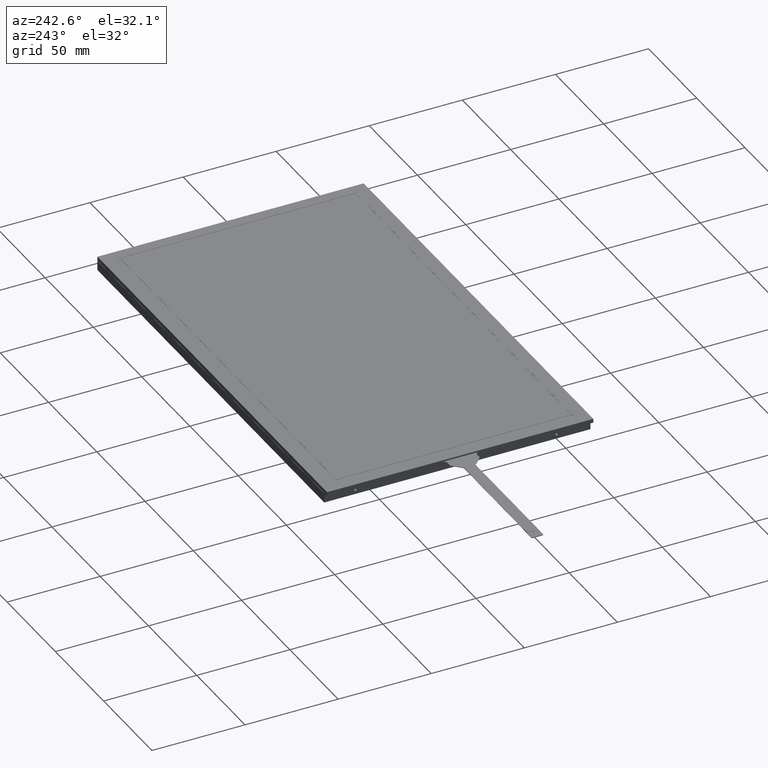
[diagram: clean part render]
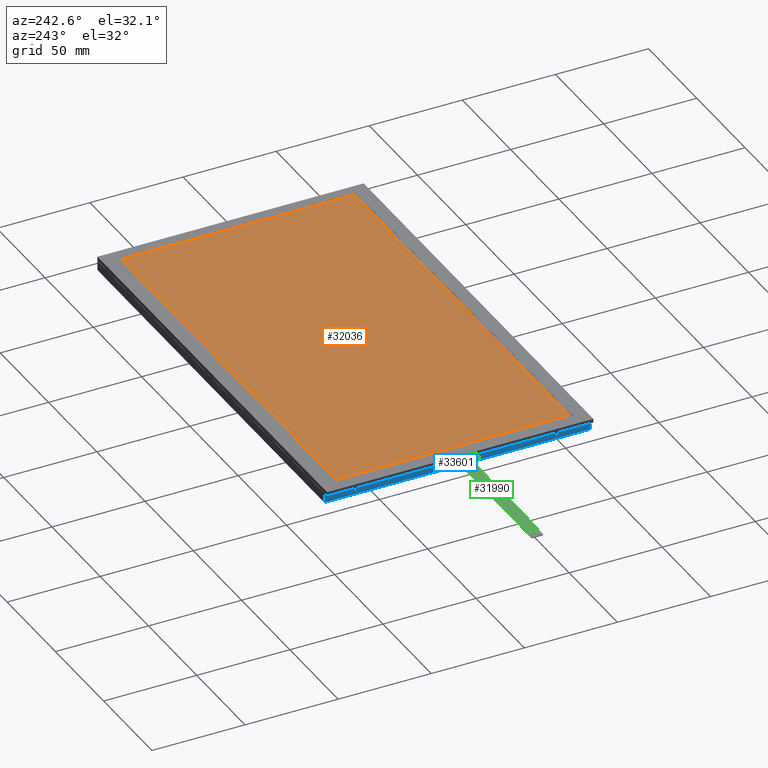
[diagram: same view with three faces highlighted in distinct colors, each labeled with its STEP entity id]
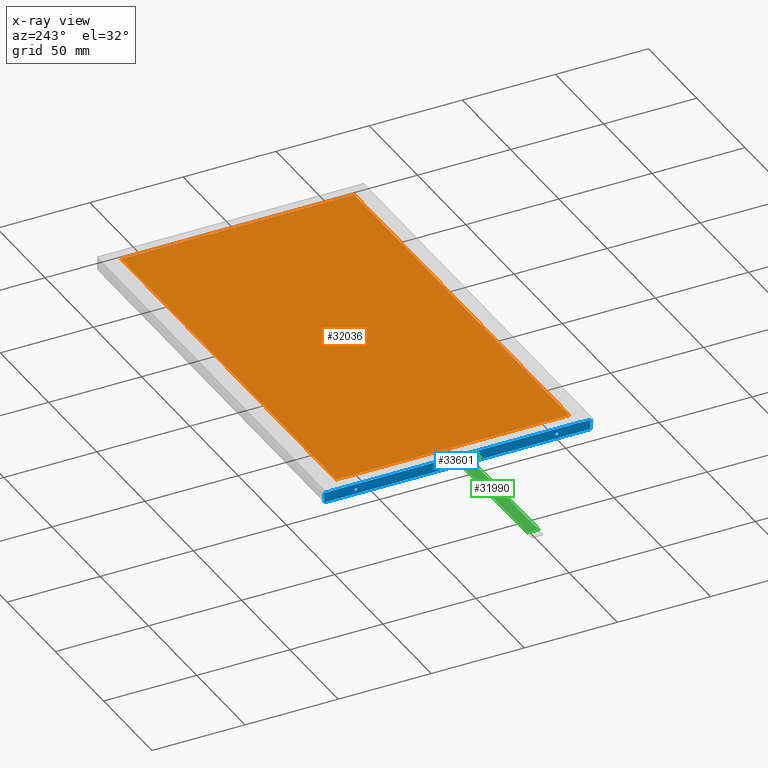
[diagram: x-ray of the same camera — body ghosted, the three highlighted faces saturated]
A machine part, auxiliary view with three faces highlighted in distinct colors.
The next image is the same camera in x-ray (body ghosted, the three faces saturated) — at least one of them is partly hidden behind the body in this view.
Their STEP definitions:

[orange] entity #32036 — the highlighted planar face has unit normal (-0, -0, 1).
#2003=FACE_OUTER_BOUND('',#3682,.T.);
#3682=EDGE_LOOP('',(#21523,#21524,#21525,#21526));
#5610=LINE('',#46206,#9338);
#5614=LINE('',#46214,#9342);
#5617=LINE('',#46220,#9345);
#5620=LINE('',#46225,#9348);
#9338=VECTOR('',#36851,10.);
#9342=VECTOR('',#36857,10.);
#9345=VECTOR('',#36862,10.);
#9348=VECTOR('',#36867,10.);
#13003=VERTEX_POINT('',#46204);
#13004=VERTEX_POINT('',#46205);
#13007=VERTEX_POINT('',#46213);
#13009=VERTEX_POINT('',#46219);
#16335=EDGE_CURVE('',#13003,#13004,#5610,.T.);
#16339=EDGE_CURVE('',#13004,#13007,#5614,.T.);
#16342=EDGE_CURVE('',#13007,#13009,#5617,.T.);
#16345=EDGE_CURVE('',#13009,#13003,#5620,.T.);
#21523=ORIENTED_EDGE('',*,*,#16335,.T.);
#21524=ORIENTED_EDGE('',*,*,#16339,.T.);
#21525=ORIENTED_EDGE('',*,*,#16342,.T.);
#21526=ORIENTED_EDGE('',*,*,#16345,.T.);
#30923=PLANE('',#33744);
#32036=ADVANCED_FACE('',(#2003),#30923,.T.);
#33744=AXIS2_PLACEMENT_3D('',#46251,#36896,#36897);
#36851=DIRECTION('',(7.03384952101053E-16,-1.,-4.56322426788058E-17));
#36857=DIRECTION('',(1.,3.00166979396354E-16,7.85439421835399E-15));
#36862=DIRECTION('',(-4.19803081187858E-16,1.,4.5632242678808E-17));
#36867=DIRECTION('',(-1.,-4.19803081187858E-16,-7.85439421835399E-15));
#36896=DIRECTION('center_axis',(-7.85439421835399E-15,-4.56322426788113E-17,
1.));
#36897=DIRECTION('ref_axis',(1.,4.19803081187858E-16,7.85439421835399E-15));
#46204=CARTESIAN_POINT('',(-392.574560013878,119.513580187365,-83.3470944214072));
#46205=CARTESIAN_POINT('',(-392.574560013878,-5.76641981263462,-83.3470944214072));
#46206=CARTESIAN_POINT('',(-392.574560013878,25.6285801873653,-83.3470944214072));
#46213=CARTESIAN_POINT('',(-169.854560013878,-5.76641981263456,-83.3470944214054));
#46214=CARTESIAN_POINT('',(-225.784560013878,-5.76641981263457,-83.3470944214059));
#46219=CARTESIAN_POINT('',(-169.854560013878,119.513580187365,-83.3470944214054));
#46220=CARTESIAN_POINT('',(-169.854560013878,88.2685801873654,-83.3470944214054));
#46225=CARTESIAN_POINT('',(-337.144560013878,119.513580187365,-83.3470944214068));
#46251=CARTESIAN_POINT('Origin',(-281.714560013878,57.0235801873654,-83.3470944214063));

[blue] entity #33601 — the highlighted planar face has unit normal (-1, -0, -0).
#1240=CIRCLE('',#36392,0.7835);
#1241=CIRCLE('',#36393,0.7835);
#1244=CIRCLE('',#36398,0.7835);
#1245=CIRCLE('',#36399,0.7835);
#1898=FACE_BOUND('',#5371,.T.);
#1899=FACE_BOUND('',#5372,.T.);
#3568=FACE_OUTER_BOUND('',#5370,.T.);
#5370=EDGE_LOOP('',(#30795,#30796,#30797,#30798,#30799,#30800,#30801,#30802));
#5371=EDGE_LOOP('',(#30803,#30804));
#5372=EDGE_LOOP('',(#30805,#30806));
#5469=LINE('',#45889,#9197);
#5491=LINE('',#45932,#9219);
#5496=LINE('',#45942,#9224);
#9095=LINE('',#57127,#12823);
#9099=LINE('',#57134,#12827);
#9100=LINE('',#57137,#12828);
#9101=LINE('',#57139,#12829);
#9102=LINE('',#57140,#12830);
#9197=VECTOR('',#36572,10.);
#9219=VECTOR('',#36608,10.);
#9224=VECTOR('',#36615,10.);
#12823=VECTOR('',#45678,10.);
#12827=VECTOR('',#45682,10.);
#12828=VECTOR('',#45685,10.);
#12829=VECTOR('',#45686,10.);
#12830=VECTOR('',#45687,10.);
#12896=VERTEX_POINT('',#45886);
#12897=VERTEX_POINT('',#45888);
#12910=VERTEX_POINT('',#45928);
#12911=VERTEX_POINT('',#45930);
#16073=VERTEX_POINT('',#57104);
#16074=VERTEX_POINT('',#57105);
#16077=VERTEX_POINT('',#57115);
#16078=VERTEX_POINT('',#57116);
#16081=VERTEX_POINT('',#57126);
#16084=VERTEX_POINT('',#57132);
#16085=VERTEX_POINT('',#57136);
#16086=VERTEX_POINT('',#57138);
#16178=EDGE_CURVE('',#12896,#12897,#5469,.T.);
#16200=EDGE_CURVE('',#12910,#12911,#5491,.T.);
#16205=EDGE_CURVE('',#12910,#12896,#5496,.T.);
#20980=EDGE_CURVE('',#16073,#16074,#1240,.T.);
#20981=EDGE_CURVE('',#16074,#16073,#1241,.T.);
#20985=EDGE_CURVE('',#16077,#16078,#1244,.T.);
#20986=EDGE_CURVE('',#16078,#16077,#1245,.T.);
#20990=EDGE_CURVE('',#16081,#12897,#9095,.T.);
#20994=EDGE_CURVE('',#12911,#16084,#9099,.T.);
#20995=EDGE_CURVE('',#16084,#16085,#9100,.T.);
#20996=EDGE_CURVE('',#16086,#16085,#9101,.T.);
#20997=EDGE_CURVE('',#16081,#16086,#9102,.T.);
#30795=ORIENTED_EDGE('',*,*,#20990,.T.);
#30796=ORIENTED_EDGE('',*,*,#16178,.F.);
#30797=ORIENTED_EDGE('',*,*,#16205,.F.);
#30798=ORIENTED_EDGE('',*,*,#16200,.T.);
#30799=ORIENTED_EDGE('',*,*,#20994,.T.);
#30800=ORIENTED_EDGE('',*,*,#20995,.T.);
#30801=ORIENTED_EDGE('',*,*,#20996,.F.);
#30802=ORIENTED_EDGE('',*,*,#20997,.F.);
#30803=ORIENTED_EDGE('',*,*,#20980,.T.);
#30804=ORIENTED_EDGE('',*,*,#20981,.T.);
#30805=ORIENTED_EDGE('',*,*,#20985,.T.);
#30806=ORIENTED_EDGE('',*,*,#20986,.T.);
#31931=PLANE('',#36404);
#33601=ADVANCED_FACE('',(#3568,#1898,#1899),#31931,.T.);
#36392=AXIS2_PLACEMENT_3D('',#57106,#45652,#45653);
#36393=AXIS2_PLACEMENT_3D('',#57107,#45654,#45655);
#36398=AXIS2_PLACEMENT_3D('',#57117,#45665,#45666);
#36399=AXIS2_PLACEMENT_3D('',#57118,#45667,#45668);
#36404=AXIS2_PLACEMENT_3D('',#57135,#45683,#45684);
#36572=DIRECTION('',(7.85439421835399E-15,4.56322426788113E-17,-1.));
#36608=DIRECTION('',(7.85439421835399E-15,4.56322426788113E-17,-1.));
#36615=DIRECTION('',(4.19803081187858E-16,-1.,-4.5632242678808E-17));
#45652=DIRECTION('center_axis',(1.,1.66679024894556E-17,7.85439421835399E-15));
#45653=DIRECTION('ref_axis',(-7.85439421835399E-15,4.33680868993491E-18,
1.));
#45654=DIRECTION('center_axis',(1.,1.66679024894556E-17,7.85439421835399E-15));
#45655=DIRECTION('ref_axis',(-7.85439421835399E-15,4.33680868993491E-18,
1.));
#45665=DIRECTION('center_axis',(1.,1.66679024894556E-17,7.85439421835399E-15));
#45666=DIRECTION('ref_axis',(-7.85439421835399E-15,4.33680868993491E-18,
1.));
#45667=DIRECTION('center_axis',(1.,1.66679024894556E-17,7.85439421835399E-15));
#45668=DIRECTION('ref_axis',(-7.85439421835399E-15,4.33680868993491E-18,
1.));
#45678=DIRECTION('',(-1.66679024894556E-17,1.,-4.33680868993504E-18));
#45682=DIRECTION('',(-1.66679024894556E-17,1.,-4.33680868993504E-18));
#45683=DIRECTION('center_axis',(-1.,-1.66679024894556E-17,-7.85439421835399E-15));
#45684=DIRECTION('ref_axis',(-1.66679024894556E-17,1.,-4.33680868993504E-18));
#45685=DIRECTION('',(7.85439421835399E-15,-4.33680868993491E-18,-1.));
#45686=DIRECTION('',(-1.66679024894556E-17,1.,-4.33680868993504E-18));
#45687=DIRECTION('',(7.85439421835399E-15,-4.33680868993491E-18,-1.));
#45886=CARTESIAN_POINT('',(-397.714560013878,-8.47641981263467,-85.4470944214072));
#45888=CARTESIAN_POINT('',(-397.714560013878,-8.47641981263466,-85.6070944214072));
#45889=CARTESIAN_POINT('',(-397.714560013878,-8.47641981263467,-85.4470944214072));
#45928=CARTESIAN_POINT('',(-397.714560013878,125.323580187365,-85.4470944214072));
#45930=CARTESIAN_POINT('',(-397.714560013878,125.323580187365,-85.6070944214072));
#45932=CARTESIAN_POINT('',(-397.714560013878,125.323580187365,-85.4470944214072));
#45942=CARTESIAN_POINT('',(-397.714560013878,24.2735801873653,-85.4470944214072));
#57104=CARTESIAN_POINT('',(-397.714560013878,111.523580187365,-87.6235944214073));
#57105=CARTESIAN_POINT('',(-397.714560013878,111.523580187365,-89.1905944214072));
#57106=CARTESIAN_POINT('Origin',(-397.714560013878,111.523580187365,-88.4070944214073));
#57107=CARTESIAN_POINT('Origin',(-397.714560013878,111.523580187365,-88.4070944214073));
#57115=CARTESIAN_POINT('',(-397.714560013878,3.52358018736539,-87.6235944214073));
#57116=CARTESIAN_POINT('',(-397.714560013878,3.52358018736539,-89.1905944214072));
#57117=CARTESIAN_POINT('Origin',(-397.714560013878,3.52358018736539,-88.4070944214073));
#57118=CARTESIAN_POINT('Origin',(-397.714560013878,3.52358018736539,-88.4070944214073));
#57126=CARTESIAN_POINT('',(-397.714560013878,-14.4764198126346,-85.6070944214073));
#57127=CARTESIAN_POINT('',(-397.714560013878,-14.4764198126346,-85.6070944214073));
#57132=CARTESIAN_POINT('',(-397.714560013878,128.523580187365,-85.6070944214073));
#57134=CARTESIAN_POINT('',(-397.714560013878,-14.4764198126346,-85.6070944214073));
#57135=CARTESIAN_POINT('Origin',(-397.714560013878,-14.4764198126346,-85.6070944214073));
#57136=CARTESIAN_POINT('',(-397.714560013878,128.523580187365,-90.8070944214073));
#57137=CARTESIAN_POINT('',(-397.714560013878,128.523580187365,-85.6070944214073));
#57138=CARTESIAN_POINT('',(-397.714560013878,-14.4764198126346,-90.8070944214073));
#57139=CARTESIAN_POINT('',(-397.714560013878,-14.4764198126346,-90.8070944214073));
#57140=CARTESIAN_POINT('',(-397.714560013878,-14.4764198126346,-85.6070944214073));

[green] entity #31990 — the highlighted planar face has unit normal (-0, -0, 1).
#165=CIRCLE('',#33684,1.);
#167=CIRCLE('',#33687,1.);
#168=CIRCLE('',#33690,1.);
#170=CIRCLE('',#33693,2.);
#171=CIRCLE('',#33694,2.);
#172=CIRCLE('',#33695,1.);
#1957=FACE_OUTER_BOUND('',#3632,.T.);
#3632=EDGE_LOOP('',(#21282,#21283,#21284,#21285,#21286,#21287,#21288,#21289,
#21290,#21291,#21292,#21293,#21294,#21295));
#5505=LINE('',#45968,#9233);
#5536=LINE('',#46040,#9264);
#5538=LINE('',#46049,#9266);
#5539=LINE('',#46053,#9267);
#5540=LINE('',#46057,#9268);
#5541=LINE('',#46060,#9269);
#5542=LINE('',#46062,#9270);
#5543=LINE('',#46063,#9271);
#9233=VECTOR('',#36636,10.);
#9264=VECTOR('',#36689,10.);
#9266=VECTOR('',#36699,10.);
#9267=VECTOR('',#36702,10.);
#9268=VECTOR('',#36705,10.);
#9269=VECTOR('',#36708,10.);
#9270=VECTOR('',#36709,10.);
#9271=VECTOR('',#36710,10.);
#12925=VERTEX_POINT('',#45965);
#12926=VERTEX_POINT('',#45967);
#12950=VERTEX_POINT('',#46023);
#12953=VERTEX_POINT('',#46030);
#12954=VERTEX_POINT('',#46032);
#12956=VERTEX_POINT('',#46038);
#12957=VERTEX_POINT('',#46042);
#12959=VERTEX_POINT('',#46048);
#12960=VERTEX_POINT('',#46050);
#12961=VERTEX_POINT('',#46052);
#12962=VERTEX_POINT('',#46054);
#12963=VERTEX_POINT('',#46056);
#12964=VERTEX_POINT('',#46058);
#12965=VERTEX_POINT('',#46061);
#16217=EDGE_CURVE('',#12925,#12926,#5505,.T.);
#16245=EDGE_CURVE('',#12926,#12950,#165,.T.);
#16249=EDGE_CURVE('',#12953,#12954,#167,.T.);
#16253=EDGE_CURVE('',#12956,#12953,#5536,.T.);
#16254=EDGE_CURVE('',#12957,#12956,#168,.T.);
#16257=EDGE_CURVE('',#12959,#12957,#5538,.T.);
#16258=EDGE_CURVE('',#12960,#12959,#170,.T.);
#16259=EDGE_CURVE('',#12961,#12960,#5539,.T.);
#16260=EDGE_CURVE('',#12962,#12961,#171,.T.);
#16261=EDGE_CURVE('',#12963,#12962,#5540,.T.);
#16262=EDGE_CURVE('',#12964,#12963,#172,.T.);
#16263=EDGE_CURVE('',#12950,#12964,#5541,.T.);
#16264=EDGE_CURVE('',#12925,#12965,#5542,.T.);
#16265=EDGE_CURVE('',#12954,#12965,#5543,.T.);
#21282=ORIENTED_EDGE('',*,*,#16254,.F.);
#21283=ORIENTED_EDGE('',*,*,#16257,.F.);
#21284=ORIENTED_EDGE('',*,*,#16258,.F.);
#21285=ORIENTED_EDGE('',*,*,#16259,.F.);
#21286=ORIENTED_EDGE('',*,*,#16260,.F.);
#21287=ORIENTED_EDGE('',*,*,#16261,.F.);
#21288=ORIENTED_EDGE('',*,*,#16262,.F.);
#21289=ORIENTED_EDGE('',*,*,#16263,.F.);
#21290=ORIENTED_EDGE('',*,*,#16245,.F.);
#21291=ORIENTED_EDGE('',*,*,#16217,.F.);
#21292=ORIENTED_EDGE('',*,*,#16264,.T.);
#21293=ORIENTED_EDGE('',*,*,#16265,.F.);
#21294=ORIENTED_EDGE('',*,*,#16249,.F.);
#21295=ORIENTED_EDGE('',*,*,#16253,.F.);
#30880=PLANE('',#33692);
#31990=ADVANCED_FACE('',(#1957),#30880,.T.);
#33684=AXIS2_PLACEMENT_3D('',#46024,#36674,#36675);
#33687=AXIS2_PLACEMENT_3D('',#46033,#36682,#36683);
#33690=AXIS2_PLACEMENT_3D('',#46043,#36692,#36693);
#33692=AXIS2_PLACEMENT_3D('',#46047,#36697,#36698);
#33693=AXIS2_PLACEMENT_3D('',#46051,#36700,#36701);
#33694=AXIS2_PLACEMENT_3D('',#46055,#36703,#36704);
#33695=AXIS2_PLACEMENT_3D('',#46059,#36706,#36707);
#36636=DIRECTION('',(1.,3.8830739254601E-16,7.85439421835399E-15));
#36674=DIRECTION('center_axis',(-7.85439421835399E-15,-4.56322426788114E-17,
1.));
#36675=DIRECTION('ref_axis',(0.38150169074393,-0.924368140926288,2.95428368274009E-15));
#36682=DIRECTION('center_axis',(-7.85439421835399E-15,-4.56322426788114E-17,
1.));
#36683=DIRECTION('ref_axis',(0.381501690743929,0.924368140926289,3.0386456654027E-15));
#36689=DIRECTION('',(-0.70891291991905,0.7052960172664,-5.53589730050833E-15));
#36692=DIRECTION('center_axis',(7.85439421835399E-15,4.56322426788114E-17,
-1.));
#36693=DIRECTION('ref_axis',(-0.381501690743928,-0.92436814092629,-3.03864566540269E-15));
#36697=DIRECTION('center_axis',(-7.85439421835399E-15,-4.56322426788114E-17,
1.));
#36698=DIRECTION('ref_axis',(1.,4.19803081187858E-16,7.85439421835399E-15));
#36699=DIRECTION('',(-1.,-6.61155912628109E-16,-7.85439421835399E-15));
#36700=DIRECTION('center_axis',(-7.85439421835399E-15,-4.56322426788114E-17,
1.));
#36701=DIRECTION('ref_axis',(0.707106781186546,0.707106781186549,5.58616228214944E-15));
#36702=DIRECTION('',(5.44023839187876E-16,-1.,-4.56322426788071E-17));
#36703=DIRECTION('center_axis',(-7.85439421835399E-15,-4.56322426788114E-17,
1.));
#36704=DIRECTION('ref_axis',(0.707106781186541,-0.707106781186554,5.52162854567153E-15));
#36705=DIRECTION('',(1.,6.61155912628109E-16,7.85439421835399E-15));
#36706=DIRECTION('center_axis',(7.85439421835399E-15,4.56322426788114E-17,
-1.));
#36707=DIRECTION('ref_axis',(-0.38150169074393,0.924368140926288,-2.95428368274009E-15));
#36708=DIRECTION('',(0.70891291991905,0.705296017266401,5.60026577854893E-15));
#36709=DIRECTION('',(4.19803081187858E-16,-1.,-4.56322426788081E-17));
#36710=DIRECTION('',(-1.,-4.51298769829707E-16,-7.85439421835399E-15));
#45965=CARTESIAN_POINT('',(-475.714560013878,60.0135801873653,-84.1470944214078));
#45967=CARTESIAN_POINT('',(-410.627276196807,60.0135801873653,-84.1470944214073));
#45968=CARTESIAN_POINT('',(-480.714560013878,60.0135801873653,-84.1470944214079));
#46023=CARTESIAN_POINT('',(-409.92198017954,60.3046672674463,-84.1470944214073));
#46024=CARTESIAN_POINT('Origin',(-410.627276196807,61.0135801873653,-84.1470944214073));
#46030=CARTESIAN_POINT('',(-409.92198017954,53.4724931072844,-84.1470944214073));
#46032=CARTESIAN_POINT('',(-410.627276196807,53.7635801873653,-84.1470944214073));
#46033=CARTESIAN_POINT('Origin',(-410.627276196807,52.7635801873653,-84.1470944214073));
#46038=CARTESIAN_POINT('',(-405.607139848216,49.1796672674463,-84.1470944214073));
#46040=CARTESIAN_POINT('',(-405.314560013878,48.8885801873653,-84.1470944214073));
#46042=CARTESIAN_POINT('',(-404.901843830949,48.8885801873653,-84.1470944214073));
#46043=CARTESIAN_POINT('Origin',(-404.901843830949,49.8885801873653,-84.1470944214073));
#46047=CARTESIAN_POINT('Origin',(-437.909067669167,56.8885801873653,-84.1470944214075));
#46048=CARTESIAN_POINT('',(-402.714560013878,48.8885801873653,-84.1470944214073));
#46049=CARTESIAN_POINT('',(-400.714560013878,48.8885801873653,-84.1470944214073));
#46050=CARTESIAN_POINT('',(-400.714560013878,46.8885801873653,-84.1470944214073));
#46051=CARTESIAN_POINT('Origin',(-402.714560013878,46.8885801873653,-84.1470944214073));
#46052=CARTESIAN_POINT('',(-400.714560013878,66.8885801873653,-84.1470944214073));
#46053=CARTESIAN_POINT('',(-400.714560013878,21.2060801873653,-84.1470944214073));
#46054=CARTESIAN_POINT('',(-402.714560013878,64.8885801873653,-84.1470944214073));
#46055=CARTESIAN_POINT('Origin',(-402.714560013878,66.8885801873653,-84.1470944214073));
#46056=CARTESIAN_POINT('',(-404.901843830949,64.8885801873653,-84.1470944214073));
#46057=CARTESIAN_POINT('',(-405.314560013878,64.8885801873653,-84.1470944214073));
#46058=CARTESIAN_POINT('',(-405.607139848216,64.5974931072844,-84.1470944214073));
#46059=CARTESIAN_POINT('Origin',(-404.901843830949,63.8885801873653,-84.1470944214073));
#46060=CARTESIAN_POINT('',(-410.214560013878,60.0135801873653,-84.1470944214073));
#46061=CARTESIAN_POINT('',(-475.714560013878,53.7635801873653,-84.1470944214078));
#46062=CARTESIAN_POINT('',(-475.714560013878,58.4510801873653,-84.1470944214078));
#46063=CARTESIAN_POINT('',(-410.214560013878,53.7635801873653,-84.1470944214073));